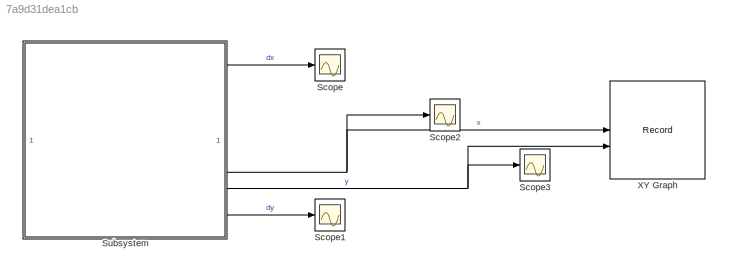
MODEL slx_7a9d31dea1cb
KIND model
CONFIG AbsTol = auto
CONFIG EnableMultiTasking = off
CONFIG FixedStep = 0.001
CONFIG MaxStep = auto
CONFIG MinStep = auto
CONFIG RelTol = 1e-3
CONFIG SampleTimeConstraint = Unconstrained
CONFIG SolverName = FixedStepAuto
CONFIG StartTime = 0.0
CONFIG StopTime = 10
BLOCK [Scope] Scope
  Floating = off
  NumInputPorts = 1
  ScopeSpecificationString = Simulink.scopes.TimeScopeBlockCfg('CurrentConfiguration', extmgr.ConfigurationSet(extmgr.Configuration('Core','General UI',true),extmgr.Configuration('Core','Source UI',true),extmgr.Configuration('Sources','WiredSimulink',true),extmgr.Configuration('Visuals','Time Domain',true,'SerializedDisplays',{struct('MinYLimReal','-9.24066','MaxYLimReal','9.27624','YLabelReal','','MinYLimMag','0.00000','MaxY...<+1347ch>
BLOCK [Scope] Scope1
  Floating = off
  NameLocation = top
  NumInputPorts = 1
  ScopeSpecificationString = Simulink.scopes.TimeScopeBlockCfg('CurrentConfiguration', extmgr.ConfigurationSet(extmgr.Configuration('Core','General UI',true),extmgr.Configuration('Core','Source UI',true),extmgr.Configuration('Sources','WiredSimulink',true,'DataLoggingVariableName','ScopeData1'),extmgr.Configuration('Visuals','Time Domain',true,'SerializedDisplays',{struct('MinYLimReal','-5.13194','MaxYLimReal','4.63024','YLab...<+1386ch>
BLOCK [Scope] Scope2
  Floating = off
  NumInputPorts = 1
  ScopeSpecificationString = Simulink.scopes.TimeScopeBlockCfg('CurrentConfiguration', extmgr.ConfigurationSet(extmgr.Configuration('Core','General UI',true),extmgr.Configuration('Core','Source UI',true),extmgr.Configuration('Sources','WiredSimulink',true,'DataLoggingVariableName','ScopeData2'),extmgr.Configuration('Visuals','Time Domain',true,'SerializedDisplays',{struct('MinYLimReal','-1.55624','MaxYLimReal','1.50625','YLab...<+1385ch>
BLOCK [Scope] Scope3
  Floating = off
  NumInputPorts = 1
  ScopeSpecificationString = Simulink.scopes.TimeScopeBlockCfg('CurrentConfiguration', extmgr.ConfigurationSet(extmgr.Configuration('Core','General UI',true),extmgr.Configuration('Core','Source UI',true),extmgr.Configuration('Sources','WiredSimulink',true,'DataLoggingVariableName','ScopeData3'),extmgr.Configuration('Visuals','Time Domain',true,'SerializedDisplays',{struct('MinYLimReal','-0.90097','MaxYLimReal','0.80628','YLab...<+1385ch>
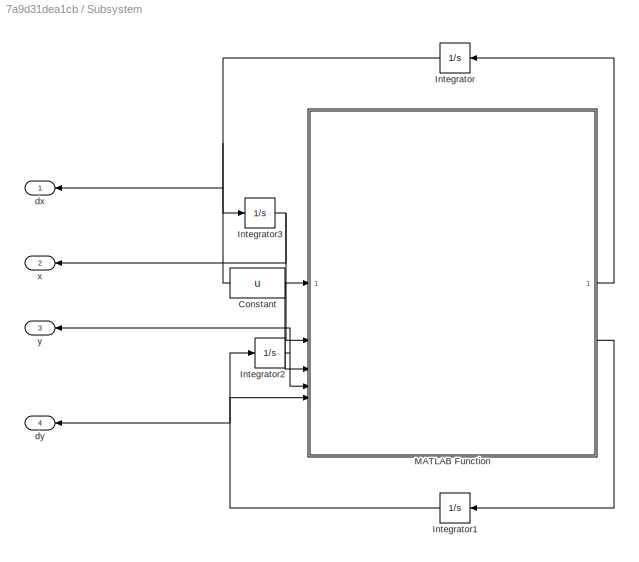
BLOCK [SubSystem] Subsystem
BLOCK [Constant] Subsystem/Constant
  Value = u
BLOCK [Integrator] Subsystem/Integrator
  InitialCondition = dx0
BLOCK [Integrator] Subsystem/Integrator1
  InitialCondition = dy0
BLOCK [Integrator] Subsystem/Integrator2
  InitialCondition = y0
BLOCK [Integrator] Subsystem/Integrator3
  InitialCondition = x0
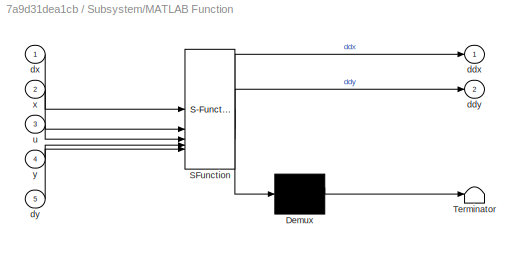
BLOCK [SubSystem] Subsystem/MATLAB Function
  ErrorFcn = Stateflow.Translate.translate
  PermitHierarchicalResolution = ExplicitOnly
  SFBlockType = MATLAB Function
  TreatAsAtomicUnit = on
BLOCK [Demux] Subsystem/MATLAB Function/ Demux 
  Outputs = 1
BLOCK [S-Function] Subsystem/MATLAB Function/ SFunction 
  EnableBusSupport = on
  FunctionName = sf_sfun
  PortCounts = [5 3]
  SFcnIsStateOwnerBlock = off
  SFunctionDeploymentMode = off
  Tag = Stateflow S-Function 2
BLOCK [Terminator] Subsystem/MATLAB Function/ Terminator 
BLOCK [Outport] Subsystem/MATLAB Function/ddx
BLOCK [Outport] Subsystem/MATLAB Function/ddy
  Port = 2
BLOCK [Inport] Subsystem/MATLAB Function/dx
BLOCK [Inport] Subsystem/MATLAB Function/dy
  Port = 5
BLOCK [Inport] Subsystem/MATLAB Function/u
  Port = 3
BLOCK [Inport] Subsystem/MATLAB Function/x
  Port = 2
BLOCK [Inport] Subsystem/MATLAB Function/y
  Port = 4
BLOCK [Outport] Subsystem/dx
BLOCK [Outport] Subsystem/dy
  Port = 4
BLOCK [Outport] Subsystem/x
  Port = 2
BLOCK [Outport] Subsystem/y
  Port = 3
BLOCK [Record] XY Graph
  CompatibilityTag = XY
  FileSettingsInternal = {"entries":[{"content":{"excelSettings":{"content":{},"type":"Streamout.ExcelSettings"}},"type":"Streamout.FileSettingStorage","uuid":""}],"packageUris":["http:\/\/schema.mathworks.com\/mf0\/streamout_blocks\/R2020a"],"version":"1.0"}
  Layout = [1 1]
  SignalsInternal = {"entries":[{"content":{"signals":[{"content":{"blockPath":[],"dimensions":[1],"domain":"","lineColor":"#a2142f","plots":[1],"port":1,"sid":[""],"signalID":270,"signalName":"x"},"type":"RecordBlkView.Signal","uuid":""},{"content":{"blockPath":[],"dimensions":[1],"domain":"","lineColor":"#139fff","plots":[1],"port":2,"sid":[""],"signalID":274,"signalName":"y"},"type":"RecordBlkView.Signal","uuid":"...<+148ch>
  VisualizationBindings = {"xyplotplugin":{"info":[{"series":[{"bindingParametersList":[{"parameter":"X-Axis","signalID":270,"signalName":"x"},{"parameter":"Y-Axis","signalID":274,"signalName":"y"}],"seriesID":10454}],"subplotID":1}]}}
LINE Subsystem/Constant:1 -> Subsystem/MATLAB Function:3
NET Subsystem/Integrator1:1 -> Subsystem/Integrator2:1, Subsystem/MATLAB Function:5, Subsystem/dy:1
NET Subsystem/Integrator2:1 -> Subsystem/MATLAB Function:4, Subsystem/y:1
NET Subsystem/Integrator3:1 -> Subsystem/MATLAB Function:2, Subsystem/x:1
NET Subsystem/Integrator:1 -> Subsystem/Integrator3:1, Subsystem/MATLAB Function:1, Subsystem/dx:1
LINE Subsystem/MATLAB Function:1 -> Subsystem/Integrator:1
LINE Subsystem/MATLAB Function:2 -> Subsystem/Integrator1:1
LINE Subsystem:1 -> Scope:1
NET Subsystem:2 -> Scope2:1, XY Graph:1
NET Subsystem:3 -> Scope3:1, XY Graph:2
LINE Subsystem:4 -> Scope1:1
note: NET lines group one-source signal fan-out (src -> all destinations, sorted); 1:1 wires keep LINE
CHART Subsystem/MATLAB Function states=1 transitions=1
  STATE_LABEL 'eML_blk_kernel()'
  STATE_LABEL 'SCRIPT:\nfunction [ddx,ddy] = fcn(dx,x,u,y,dy)\nux = 1 - u;\nr1 = sqrt( (x + u)^2 + y^2 );\nr2 = sqrt( (x - ux)^2 + y^2 );\n\nddx = 2*dy + x - ux*(x + u) / (r1^3) - u*(x - ux) / (r2^3);\nddy = -2*dx + y - ux*y / (r1^3) - u*y / (r2^3);\n'
CHART  states=0 transitions=0
